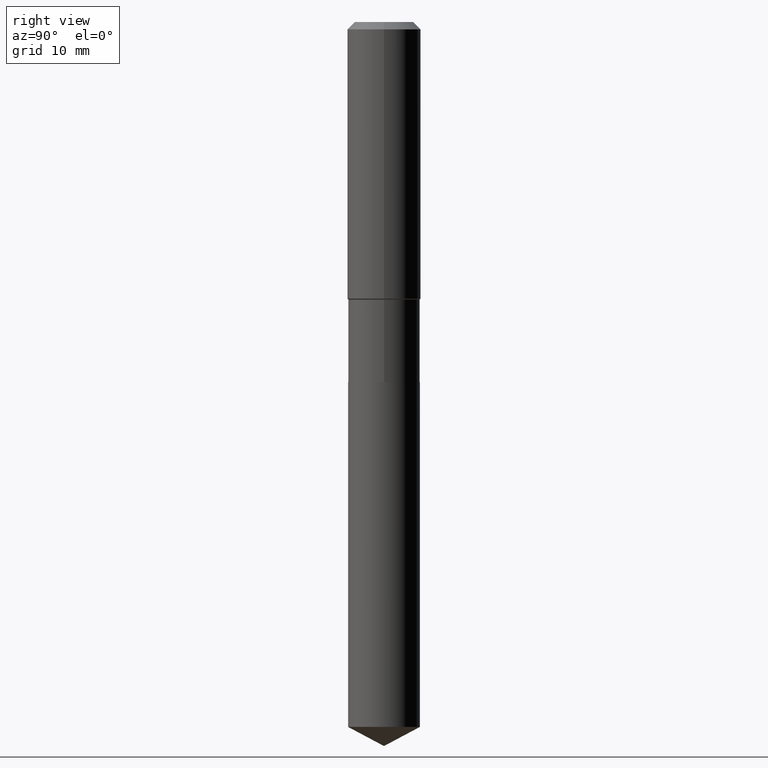
[diagram: clean part render]
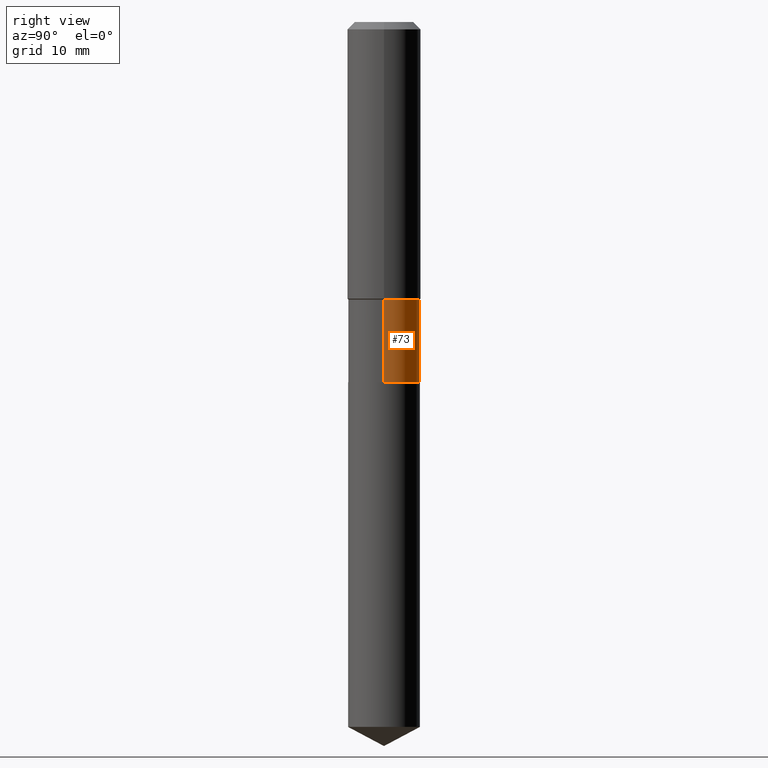
[diagram: same view with one face highlighted and labeled with its STEP entity id]
A machine part, right view. The second image highlights one B-rep face of the part: STEP entity #73.
In plain terms, the highlighted cylindrical surface (edge-blend (fillet) strip) has radius 5.8496 mm, axis along (-0, 0, 1).
Its self-contained STEP definition (entity closure, byte-faithful):
#5 = DIRECTION ( 'NONE',  ( -2.445468806185136597E-29, 3.491481338843145583E-15, 1.000000000000000000 ) ) ;
#34 = CIRCLE ( 'NONE', #319, 0.2302999999999999214 ) ;
#45 = CARTESIAN_POINT ( 'NONE',  ( 4.356113584457583395E-29, -6.219375708881294739E-15, -1.781299999999999883 ) ) ;
#60 = CARTESIAN_POINT ( 'NONE',  ( 0.2302999999999999770, -1.608176304671147069E-15, 1.122983511465803858E-29 ) ) ;
#69 = EDGE_CURVE ( 'NONE', #403, #83, #34, .T. ) ;
#73 = ADVANCED_FACE ( 'NONE', ( #238 ), #430, .T. ) ;
#83 = VERTEX_POINT ( 'NONE', #462 ) ;
#88 = DIRECTION ( 'NONE',  ( -2.445468806185136597E-29, 3.491481338843145583E-15, 1.000000000000000000 ) ) ;
#91 = EDGE_CURVE ( 'NONE', #222, #83, #247, .T. ) ;
#117 = EDGE_CURVE ( 'NONE', #410, #222, #306, .T. ) ;
#137 = VECTOR ( 'NONE', #354, 39.37007874015748143 ) ;
#176 = CARTESIAN_POINT ( 'NONE',  ( 5.650255676690757174E-29, -8.067067633397085902E-15, -2.310499999999999776 ) ) ;
#182 = DIRECTION ( 'NONE',  ( -2.445468806185136877E-29, 3.491481338843145188E-15, 1.000000000000000000 ) ) ;
#183 = CARTESIAN_POINT ( 'NONE',  ( 0.000000000000000000, 0.000000000000000000, 0.000000000000000000 ) ) ;
#204 = AXIS2_PLACEMENT_3D ( 'NONE', #183, #5, #421 ) ;
#222 = VERTEX_POINT ( 'NONE', #332 ) ;
#225 = DIRECTION ( 'NONE',  ( -2.445468806185136597E-29, 3.491481338843145583E-15, 1.000000000000000000 ) ) ;
#238 = FACE_OUTER_BOUND ( 'NONE', #330, .T. ) ;
#247 = LINE ( 'NONE', #431, #137 ) ;
#276 = EDGE_CURVE ( 'NONE', #410, #403, #396, .T. ) ;
#288 = DIRECTION ( 'NONE',  ( 1.000000000000000000, -6.982962677686269866E-15, 0.000000000000000000 ) ) ;
#306 = CIRCLE ( 'NONE', #413, 0.2303000000000000047 ) ;
#308 = DIRECTION ( 'NONE',  ( 1.000000000000000000, -6.982962677686268288E-15, 0.000000000000000000 ) ) ;
#309 = ORIENTED_EDGE ( 'NONE', *, *, #91, .T. ) ;
#319 = AXIS2_PLACEMENT_3D ( 'NONE', #45, #225, #308 ) ;
#330 = EDGE_LOOP ( 'NONE', ( #442, #309, #483, #433 ) ) ;
#332 = CARTESIAN_POINT ( 'NONE',  ( -0.2303000000000000047, -5.506841750683680348E-15, -2.310499999999999776 ) ) ;
#354 = DIRECTION ( 'NONE',  ( -2.445468806185136877E-29, 3.491481338843145188E-15, 1.000000000000000000 ) ) ;
#363 = CARTESIAN_POINT ( 'NONE',  ( 0.2302999999999999214, -7.827552013552441413E-15, -1.781299999999999883 ) ) ;
#366 = CARTESIAN_POINT ( 'NONE',  ( 0.2303000000000000047, -9.675243938068234943E-15, -2.310499999999999776 ) ) ;
#394 = VECTOR ( 'NONE', #182, 39.37007874015748143 ) ;
#396 = LINE ( 'NONE', #60, #394 ) ;
#403 = VERTEX_POINT ( 'NONE', #363 ) ;
#410 = VERTEX_POINT ( 'NONE', #366 ) ;
#413 = AXIS2_PLACEMENT_3D ( 'NONE', #176, #88, #288 ) ;
#421 = DIRECTION ( 'NONE',  ( 1.000000000000000000, -6.982962677686266711E-15, 4.876176775795935793E-29 ) ) ;
#430 = CYLINDRICAL_SURFACE ( 'NONE', #204, 0.2302999999999999770 ) ;
#431 = CARTESIAN_POINT ( 'NONE',  ( -0.2302999999999999770, 1.636379920455510564E-15, -1.132830751285704610E-29 ) ) ;
#433 = ORIENTED_EDGE ( 'NONE', *, *, #276, .F. ) ;
#442 = ORIENTED_EDGE ( 'NONE', *, *, #117, .T. ) ;
#462 = CARTESIAN_POINT ( 'NONE',  ( -0.2302999999999999214, -5.506841750683680348E-15, -1.781299999999999883 ) ) ;
#483 = ORIENTED_EDGE ( 'NONE', *, *, #69, .F. ) ;